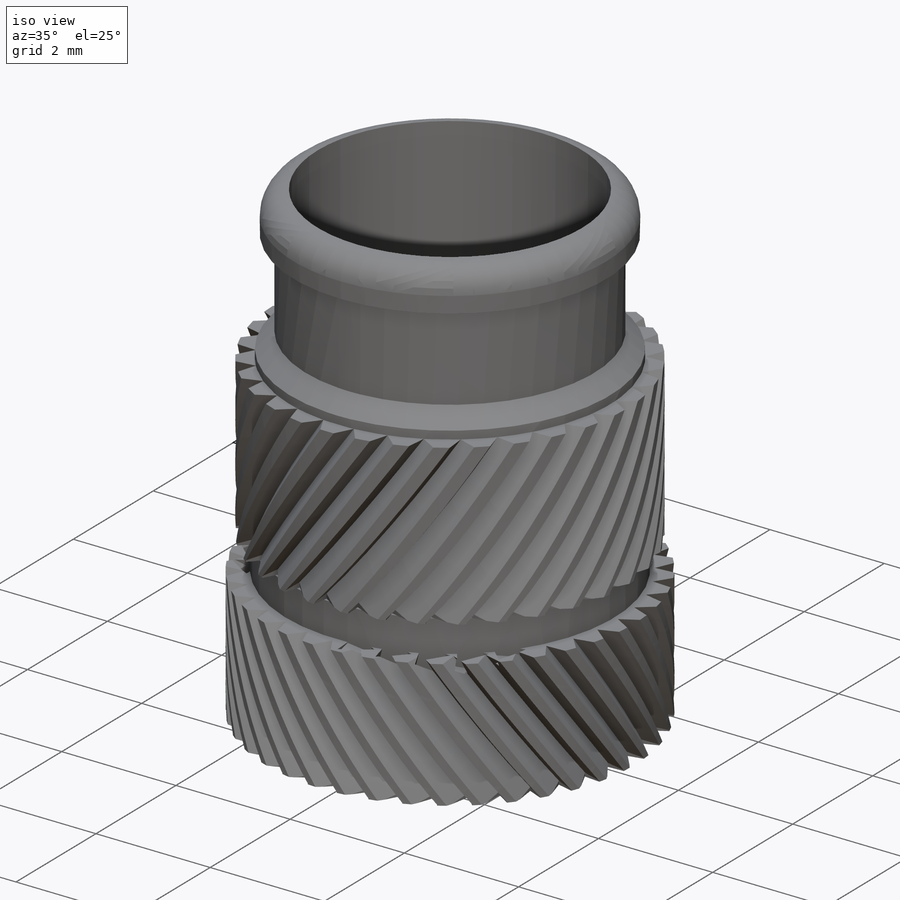
[diagram: iso view]
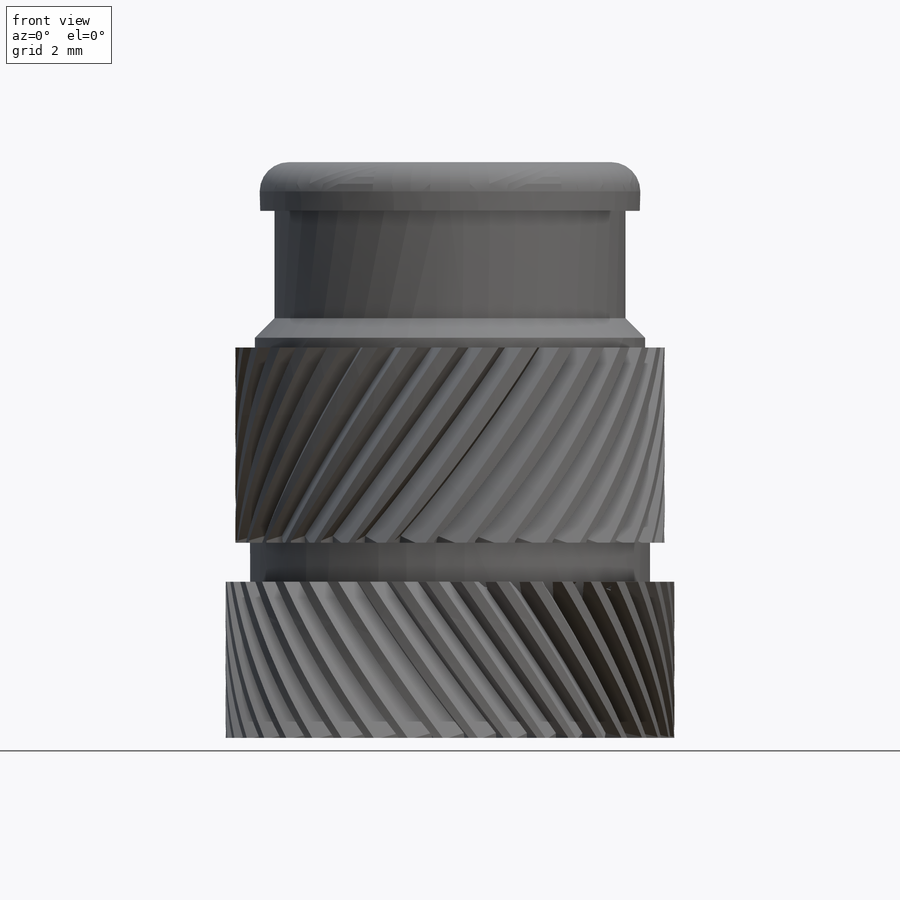
[diagram: front view]
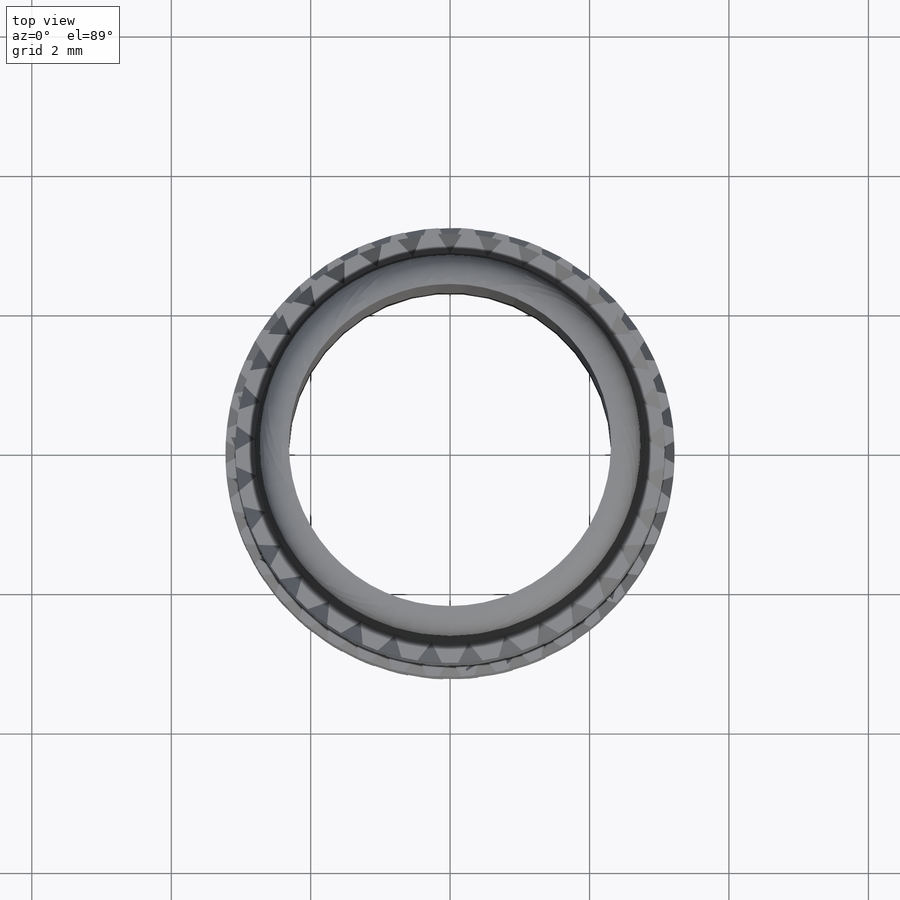
[diagram: top view]
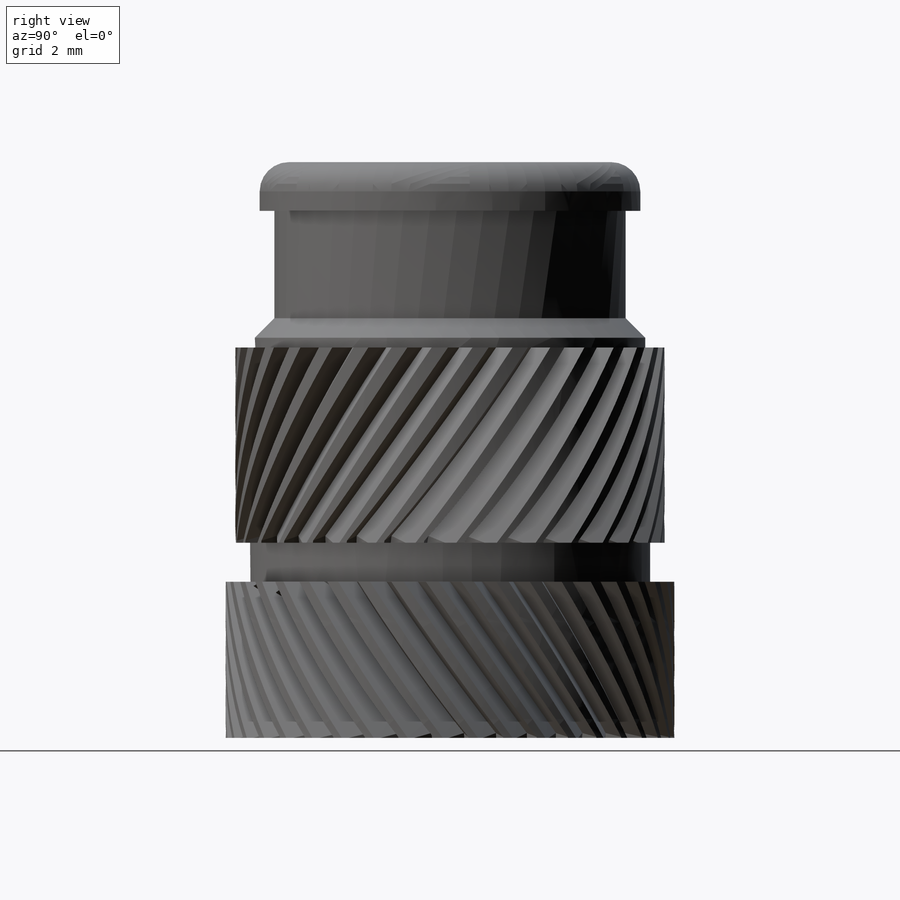
[diagram: right view]
SOLIDWORKS PART (.sldprt)
format: sldprt  version: not decoded by parser v0  size: 1,740,800 bytes
history: native  units: mm
features: sketch x13, extrude x8, plane x5, sweep x2, pattern_circular x2, fillet x2, material x1, chamfer x1, cut_extrude x1 (+9 scaffold rows collapsed)
feature tree (44):
  scaffold x9  (default folders/planes/origin — collapsed)
  material  "Material <sin especificar>"
  plane  "Alzado"
  plane  "Planta"
  plane  "Vista lateral"
  sketch  "Croquis1"  dims[D1=4.6mm]
  extrude  "Saliente-Extruir1"  Depth=1.6mm
  sketch  "Croquis10"  dims[D1=0.2mm D2=0.2mm D3=0.15mm]
  plane  "Plano6"
  sketch  "Croquis11"  dims[c1.D1=1.6mm c2.D1=35.0deg c3.D1=1.6mm c4.D1=35.0deg c4.D2=3.0mm]
  sweep  "Cortar-Barrer7"
  pattern_circular  "MatrizC1"  Count=40 Angle=360deg
  sketch  "Croquis12"  dims[D1=4.1mm]
  extrude  "Saliente-Extruir2"  Depth=0.4mm
  sketch  "Croquis13"  dims[D1=4.4mm]
  extrude  "Saliente-Extruir3"  Depth=2mm
  sketch  "Croquis14"  dims[D1=4.6mm D2=0.2mm D3=~0.187388mm]
  plane  "Plano7"
  sketch  "Croquis15"  dims[c1.D1=~2.378161mm c2.D1=35.0deg c3.D1=~2.674711mm c4.D1=35.0deg c4.D2=3.0mm c5.D1=2.0mm c6.D1=35.0deg c6.D2=3.0mm]
  sweep  "Cortar-Barrer8"
  pattern_circular  "MatrizC2"  Count=33 Angle=360deg
  extrude  "Saliente-Extruir4"  [1 undecoded]
  sketch  "Croquis12<2>"
  sketch  "Croquis16"  dims[D1=4.0mm]
  extrude  "Saliente-Extruir5"  Depth=0.3mm
  chamfer  "Chaflán1"  Distance=0.2mm Angle=45deg
  sketch  "Croquis17"  dims[D1=3.6mm]
  extrude  "Saliente-Extruir6"  Depth=1.1mm
  sketch  "Croquis19"  dims[D1=3.9mm]
  extrude  "Saliente-Extruir8"  Depth=0.5mm
  fillet  "Redondeo1"  Radius=0.3mm
  sketch  "Croquis20"  dims[D1=4.1mm]
  extrude  "Saliente-Extruir9"  [1 undecoded]
  sketch  "Croquis21"  dims[D1=3.3mm]
  cut_extrude  "Cortar-Extruir1"  [1 undecoded]
  fillet  "Escala4"  [1 undecoded]
decode coverage: 22 of 29 modeling features carry decoded parameters
note: ~ marks probable driven/reference dimensions
note: 4 parameter values undecoded
summary: no parameter record found for 4 features
note: suppression state not decoded; provenance and decode notes live in map.json
